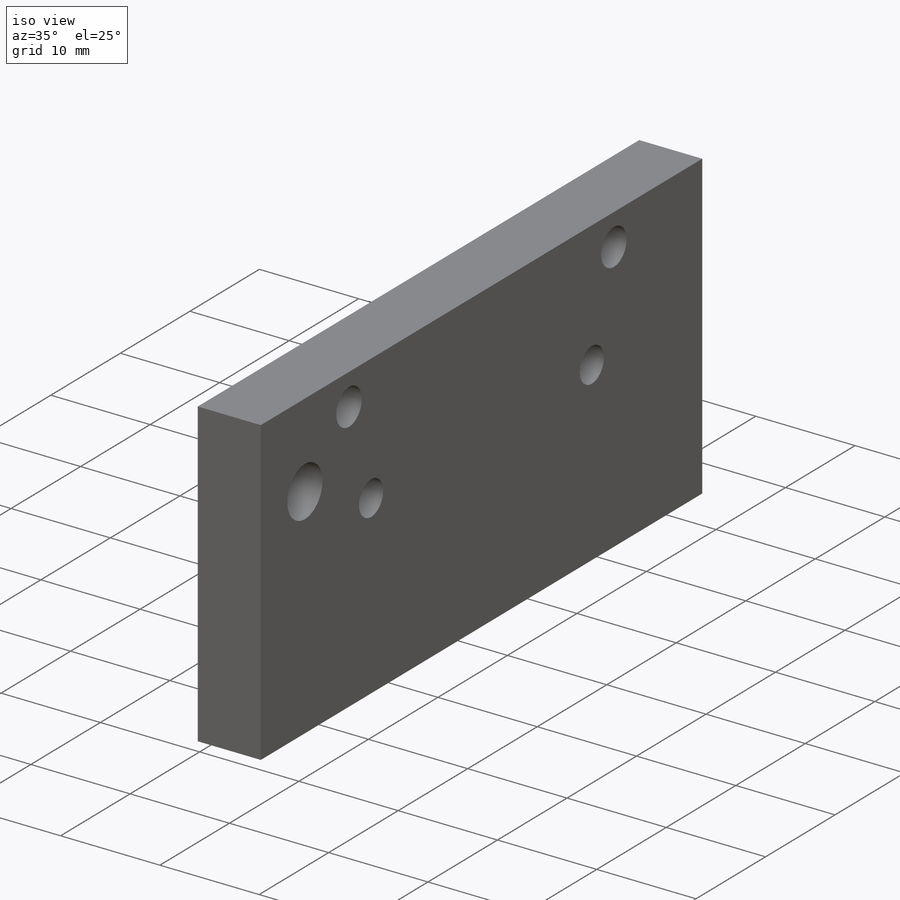
[diagram: iso view]
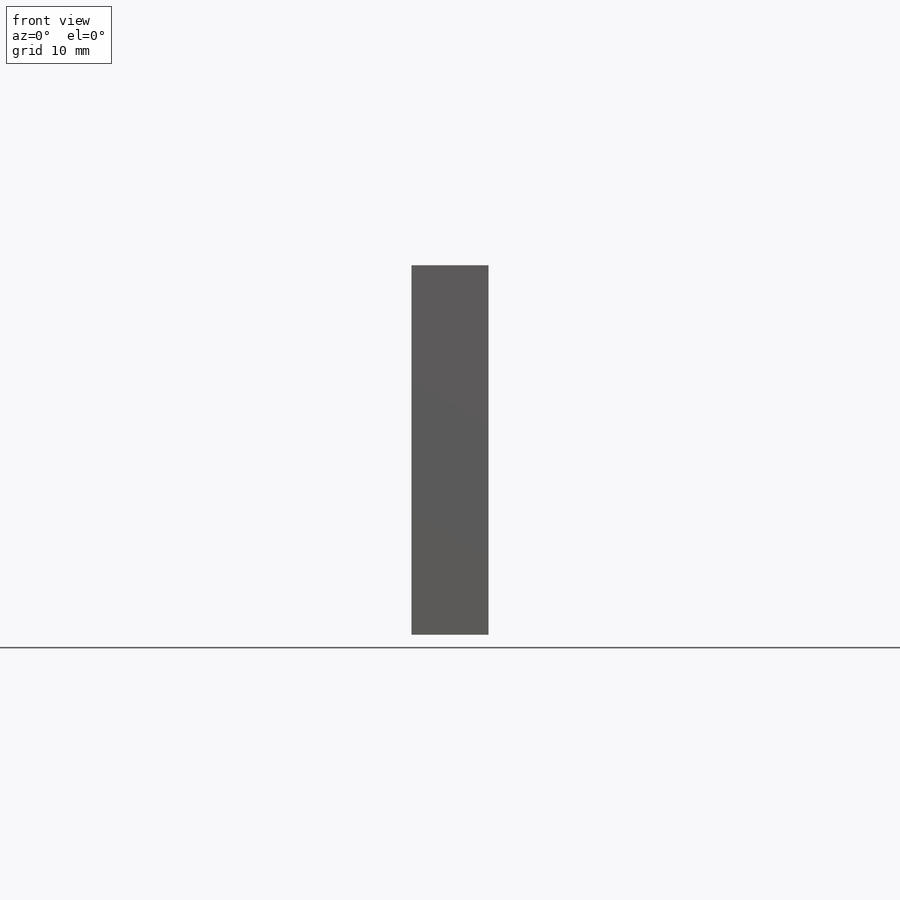
[diagram: front view]
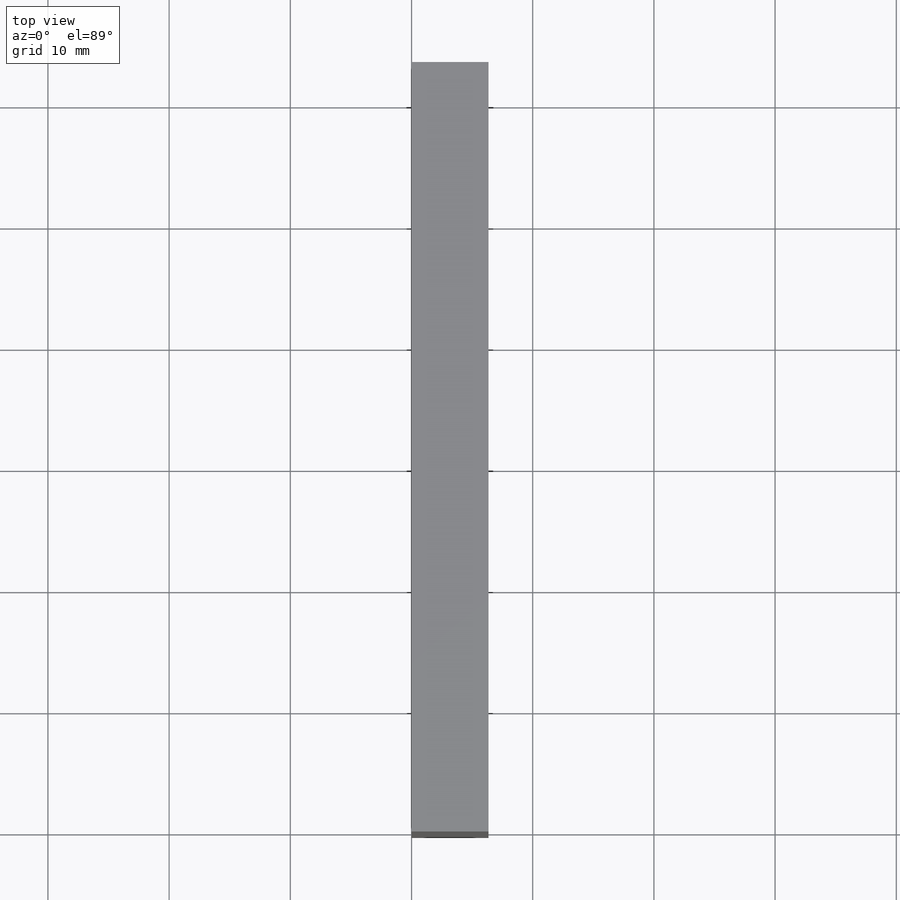
[diagram: top view]
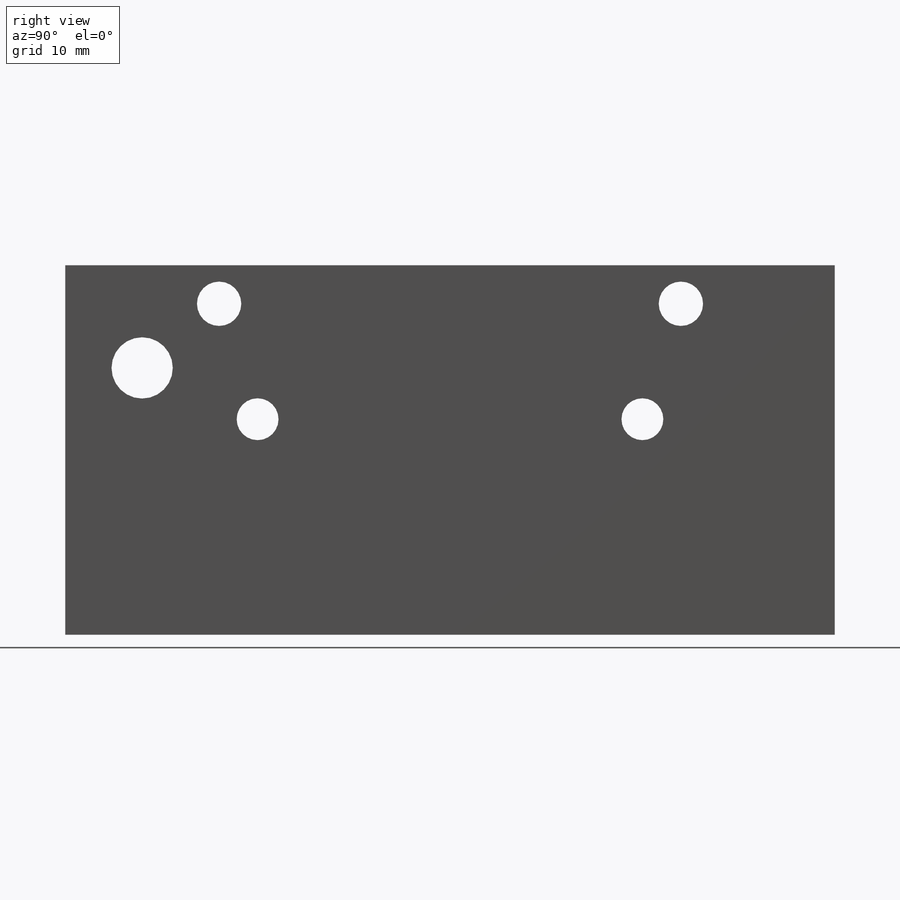
[diagram: right view]
SOLIDWORKS PART (.sldprt)
format: sldprt  version: not decoded by parser v0  size: 212,992 bytes
history: native  units: mm
features: sketch x7, hole x3, material x1, extrude x1 (+16 scaffold rows collapsed)
feature tree (28):
  scaffold x16  (default folders/planes/origin — collapsed)
  material  "Material <not specified>"
  sketch  "Sketch1"  dims[D1=63.5mm D2=30.48mm]
  extrude  "Boss-Extrude1"  Depth=6.35mm
  hole  "Tap Drill for #8-32 Tap1"  Diameter=3.4544mm Depth=6.35mm
  sketch  "Sketch3"  dims[D1=31.75mm D2=15.875mm D3=17.78mm D4=17.78mm]
  sketch  "Sketch2"  dims[hole-wizard template sketch: 47 standard entries collapsed; hole parameters kept: c15.Hole Depth=6.35mm c15.D3=~14.816244mm c15.Drill Angle=118.0deg]
  hole  "#6 Close clearance hole, countersink"  Diameter=3.6576mm Depth=6.35mm
  sketch  "Sketch7"  dims[D1=3.175mm D2=3.175mm D3=38.1mm D4=12.7mm D5=6.35mm]
  sketch  "Sketch6"  dims[hole-wizard template sketch: 60 standard entries collapsed; hole parameters kept: c18.Thru Hole Depth=6.35mm]
  hole  "#8 Through hole"  Diameter=5.0546mm Depth=6.35mm
  sketch  "Sketch9"  dims[c1.D1=6.35mm c1.D2=~8.466667mm c1.D3=~8.034081mm c1.D4=~41.491526mm c2.D1=6.35mm]
  sketch  "Sketch8"  dims[hole-wizard template sketch: 47 standard entries collapsed; hole parameters kept: c15.Hole Depth=6.35mm c15.D3=~14.816244mm c15.Drill Angle=118.0deg]
decode coverage: 11 of 11 modeling features carry decoded parameters
note: ~ marks probable driven/reference dimensions
note: suppression state not decoded; provenance and decode notes live in map.json
